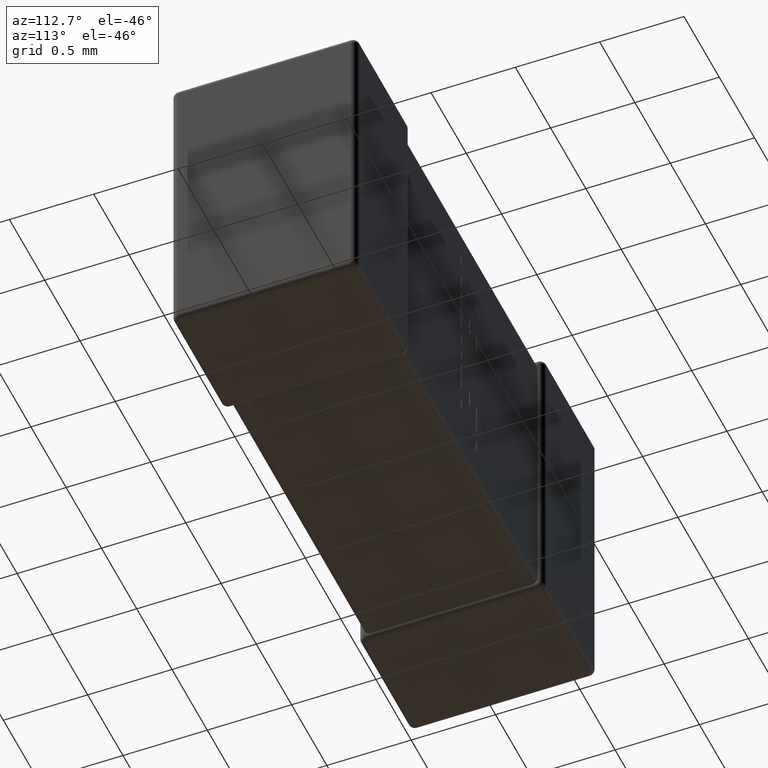
[diagram: clean part render]
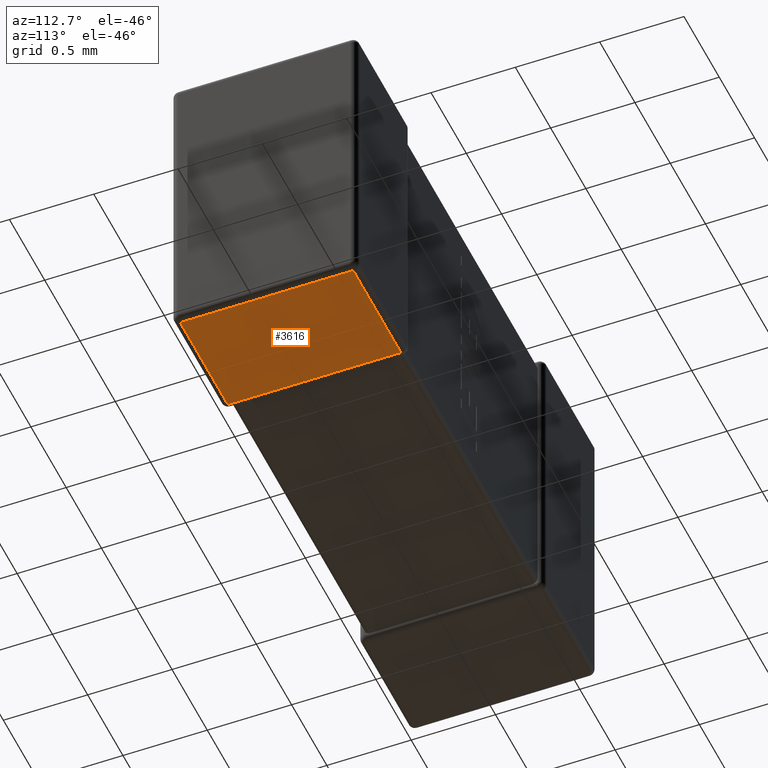
[diagram: same view with one face highlighted and labeled with its STEP entity id]
A machine part, auxiliary view. The second image highlights one B-rep face of the part: STEP entity #3616.
In plain terms, the highlighted planar face has unit normal (0, 0, 1).
Its self-contained STEP definition (entity closure, byte-faithful):
#168 = VECTOR ( 'NONE', #3548, 1000.000000000000000 ) ;
#444 = LINE ( 'NONE', #1232, #4276 ) ;
#673 = DIRECTION ( 'NONE',  ( 0.000000000000000000, 1.000000000000000000, 0.000000000000000000 ) ) ;
#692 = VECTOR ( 'NONE', #673, 1000.000000000000000 ) ;
#798 = CARTESIAN_POINT ( 'NONE',  ( 2.687440000000000495, 0.03744000000000000106, -1.800000000000000044 ) ) ;
#844 = VECTOR ( 'NONE', #4337, 1000.000000000000000 ) ;
#855 = VERTEX_POINT ( 'NONE', #798 ) ;
#894 = FACE_OUTER_BOUND ( 'NONE', #3669, .T. ) ;
#964 = EDGE_CURVE ( 'NONE', #1860, #1816, #2047, .T. ) ;
#1009 = EDGE_CURVE ( 'NONE', #1816, #1533, #2437, .T. ) ;
#1208 = DIRECTION ( 'NONE',  ( -1.000000000000000000, -0.000000000000000000, 0.000000000000000000 ) ) ;
#1232 = CARTESIAN_POINT ( 'NONE',  ( 3.400000000000000355, 0.03744000000000000106, -1.800000000000000044 ) ) ;
#1385 = DIRECTION ( 'NONE',  ( 0.000000000000000000, 0.000000000000000000, 1.000000000000000000 ) ) ;
#1419 = CARTESIAN_POINT ( 'NONE',  ( 2.687440000000000495, 0.000000000000000000, -1.800000000000000044 ) ) ;
#1433 = DIRECTION ( 'NONE',  ( 1.000000000000000000, 0.000000000000000000, -0.000000000000000000 ) ) ;
#1533 = VERTEX_POINT ( 'NONE', #3631 ) ;
#1756 = CARTESIAN_POINT ( 'NONE',  ( 3.362560000000000215, 0.000000000000000000, -1.800000000000000044 ) ) ;
#1795 = ORIENTED_EDGE ( 'NONE', *, *, #4636, .T. ) ;
#1816 = VERTEX_POINT ( 'NONE', #4101 ) ;
#1860 = VERTEX_POINT ( 'NONE', #4126 ) ;
#2002 = ORIENTED_EDGE ( 'NONE', *, *, #1009, .T. ) ;
#2047 = LINE ( 'NONE', #2151, #168 ) ;
#2151 = CARTESIAN_POINT ( 'NONE',  ( 3.400000000000000355, 1.062560000000000171, -1.800000000000000044 ) ) ;
#2291 = PLANE ( 'NONE',  #3917 ) ;
#2437 = LINE ( 'NONE', #1756, #844 ) ;
#2612 = EDGE_CURVE ( 'NONE', #1533, #855, #444, .T. ) ;
#2881 = LINE ( 'NONE', #1419, #692 ) ;
#2961 = ORIENTED_EDGE ( 'NONE', *, *, #964, .T. ) ;
#3134 = CARTESIAN_POINT ( 'NONE',  ( 3.400000000000000355, 0.000000000000000000, -1.800000000000000044 ) ) ;
#3548 = DIRECTION ( 'NONE',  ( 1.000000000000000000, -0.000000000000000000, -0.000000000000000000 ) ) ;
#3616 = ADVANCED_FACE ( 'NONE', ( #894 ), #2291, .F. ) ;
#3631 = CARTESIAN_POINT ( 'NONE',  ( 3.362560000000000215, 0.03744000000000000106, -1.800000000000000044 ) ) ;
#3669 = EDGE_LOOP ( 'NONE', ( #4452, #1795, #2961, #2002 ) ) ;
#3917 = AXIS2_PLACEMENT_3D ( 'NONE', #3134, #1385, #1433 ) ;
#4101 = CARTESIAN_POINT ( 'NONE',  ( 3.362560000000000215, 1.062560000000000171, -1.800000000000000044 ) ) ;
#4126 = CARTESIAN_POINT ( 'NONE',  ( 2.687440000000000495, 1.062560000000000171, -1.800000000000000044 ) ) ;
#4276 = VECTOR ( 'NONE', #1208, 1000.000000000000000 ) ;
#4337 = DIRECTION ( 'NONE',  ( -0.000000000000000000, -1.000000000000000000, 0.000000000000000000 ) ) ;
#4452 = ORIENTED_EDGE ( 'NONE', *, *, #2612, .T. ) ;
#4636 = EDGE_CURVE ( 'NONE', #855, #1860, #2881, .T. ) ;